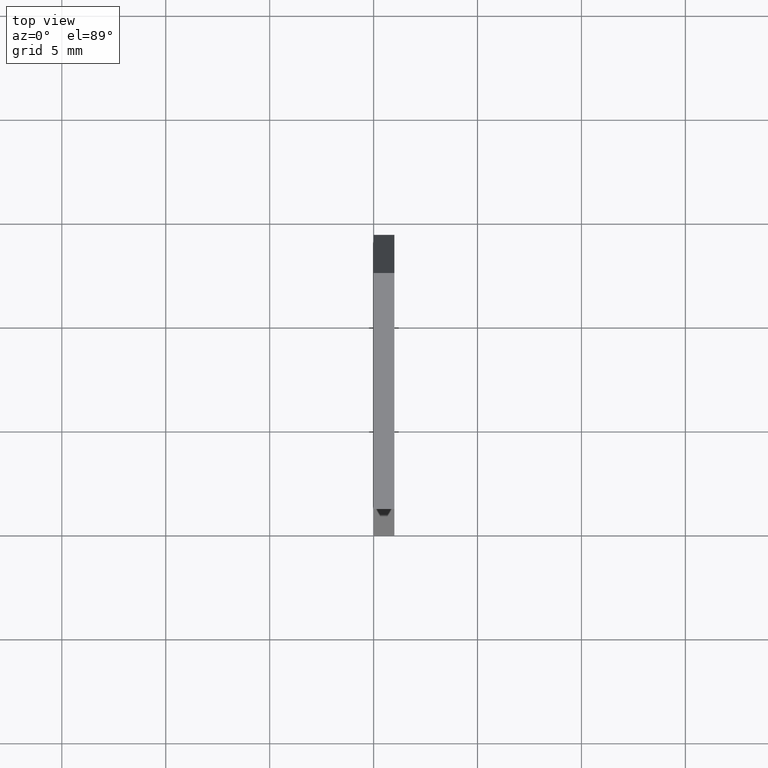
[diagram: clean part render]
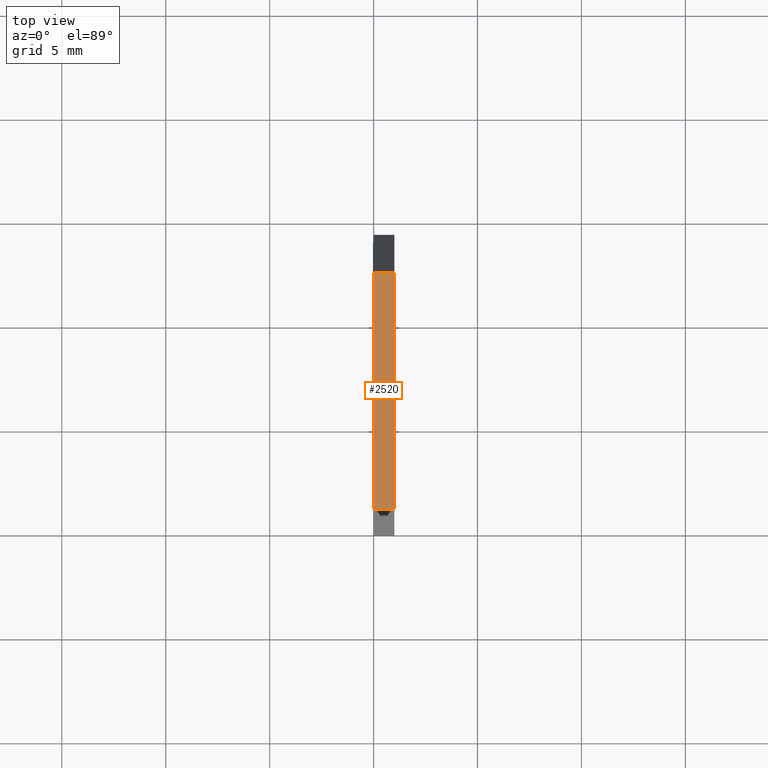
[diagram: same view with one face highlighted and labeled with its STEP entity id]
A machine part, top view. The second image highlights one B-rep face of the part: STEP entity #2520.
In plain terms, the highlighted planar face has unit normal (0, 0, 1).
Its self-contained STEP definition (entity closure, byte-faithful):
#1600=CARTESIAN_POINT('',(24.7142360016119,-9.15000000000323,54.17));
#1610=VERTEX_POINT('',#1600);
#1640=CARTESIAN_POINT('',(11.4461541156283,-9.15000000000323,54.17));
#1650=DIRECTION('',(1.,0.,0.));
#1660=VECTOR('',#1650,1.);
#1670=LINE('',#1640,#1660);
#1680=CARTESIAN_POINT('',(36.0719729923296,-9.15000000000323,54.17));
#1690=VERTEX_POINT('',#1680);
#1700=EDGE_CURVE('',#1610,#1690,#1670,.T.);
#2220=CARTESIAN_POINT('',(-16.4428327783246,-9.15000000000323,53.17));
#2230=DIRECTION('',(-0.,1.,0.));
#2240=DIRECTION('',(1.,0.,0.));
#2250=AXIS2_PLACEMENT_3D('',#2220,#2230,#2240);
#2260=PLANE('',#2250);
#2270=CARTESIAN_POINT('',(36.0719729923296,-9.15000000000323,53.17));
#2280=DIRECTION('',(0.,0.,1.));
#2290=VECTOR('',#2280,1.);
#2300=LINE('',#2270,#2290);
#2310=CARTESIAN_POINT('',(36.0719729923296,-9.15000000000323,53.17));
#2320=VERTEX_POINT('',#2310);
#2330=EDGE_CURVE('',#2320,#1690,#2300,.T.);
#2340=ORIENTED_EDGE('',*,*,#2330,.F.);
#2350=ORIENTED_EDGE('',*,*,#1700,.T.);
#2360=CARTESIAN_POINT('',(24.7142360016119,-9.15000000000323,53.17));
#2370=DIRECTION('',(0.,0.,-1.));
#2380=VECTOR('',#2370,1.);
#2390=LINE('',#2360,#2380);
#2400=CARTESIAN_POINT('',(24.7142360016119,-9.15000000000323,53.17));
#2410=VERTEX_POINT('',#2400);
#2420=EDGE_CURVE('',#1610,#2410,#2390,.T.);
#2430=ORIENTED_EDGE('',*,*,#2420,.F.);
#2440=CARTESIAN_POINT('',(11.4461541156283,-9.15000000000323,53.17));
#2450=DIRECTION('',(1.,0.,0.));
#2460=VECTOR('',#2450,1.);
#2470=LINE('',#2440,#2460);
#2480=EDGE_CURVE('',#2410,#2320,#2470,.T.);
#2490=ORIENTED_EDGE('',*,*,#2480,.F.);
#2500=EDGE_LOOP('',(#2490,#2430,#2350,#2340));
#2510=FACE_OUTER_BOUND('',#2500,.T.);
#2520=ADVANCED_FACE('',(#2510),#2260,.T.);